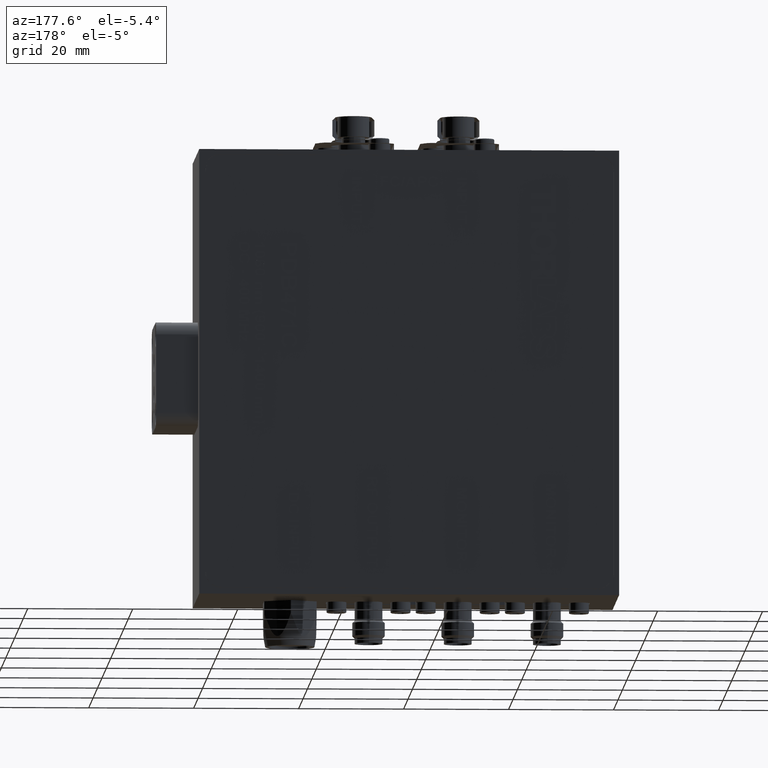
[diagram: clean part render]
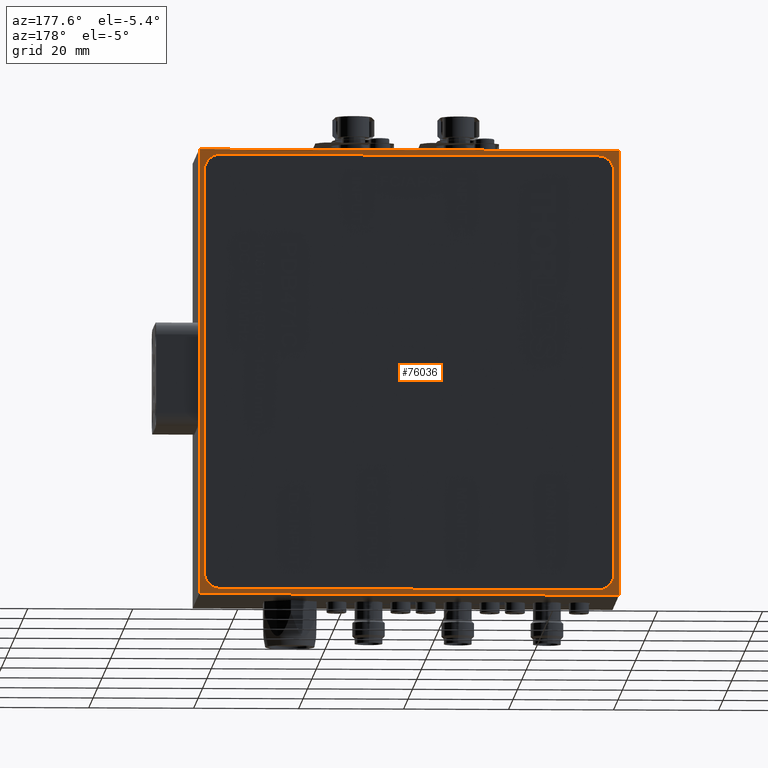
[diagram: same view with one face highlighted and labeled with its STEP entity id]
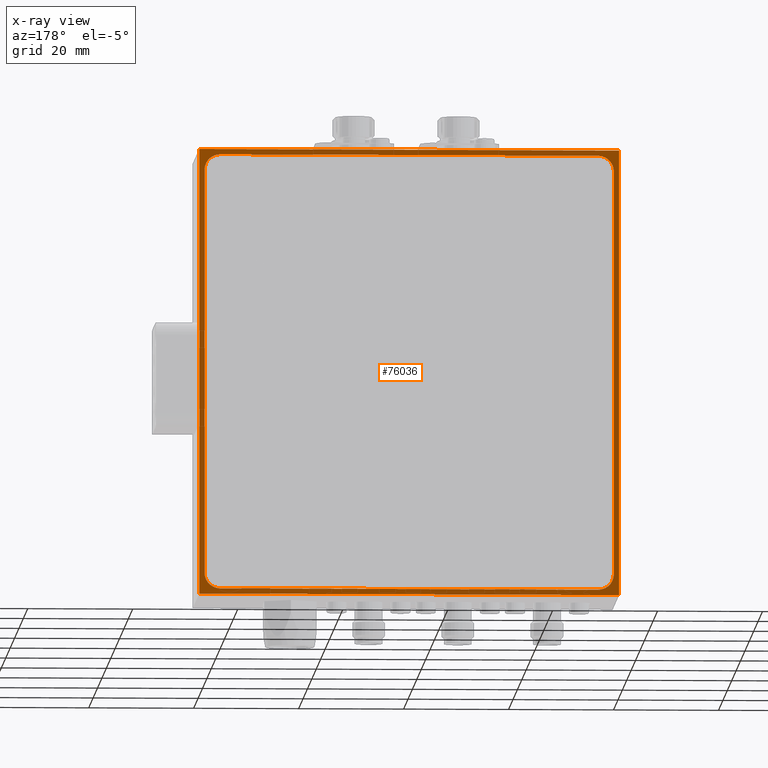
[diagram: x-ray of the same camera — body ghosted, the highlighted face saturated]
A machine part, auxiliary view. The second image highlights one B-rep face of the part: STEP entity #76036.
The next image is the same camera in x-ray: the body ghosted, the highlighted face saturated — about 0% of this face is hidden behind the body in this view.
In plain terms, the highlighted planar face has unit normal (0, 1, 0).
Its self-contained STEP definition (entity closure, byte-faithful):
#11062 = CARTESIAN_POINT ( 'NONE',  ( -40.00000000000000000, 30.00000000000000000, -42.49999999999999300 ) ) ;
#12467 = CARTESIAN_POINT ( 'NONE',  ( 40.00000000000000000, 30.00000000000000000, -42.49999999999999300 ) ) ;
#12607 = CARTESIAN_POINT ( 'NONE',  ( 40.00000000000000000, 30.00000000000000000, 42.49999999999999300 ) ) ;
#14721 = DIRECTION ( 'NONE',  ( -0.0000000000000000000, -0.0000000000000000000, -1.000000000000000000 ) ) ;
#14722 = VECTOR ( 'NONE', #14721, 1000.000000000000000 ) ;
#14723 = CARTESIAN_POINT ( 'NONE',  ( 40.00000000000000000, 30.00000000000000000, -42.49999999999999300 ) ) ;
#14736 = LINE ( 'NONE', #14723, #14722 ) ;
#20460 = DIRECTION ( 'NONE',  ( -1.000000000000000000, -0.0000000000000000000, -0.0000000000000000000 ) ) ;
#20461 = VECTOR ( 'NONE', #20460, 1000.000000000000000 ) ;
#20462 = CARTESIAN_POINT ( 'NONE',  ( -40.00000000000000000, 30.00000000000000000, -42.49999999999999300 ) ) ;
#20463 = LINE ( 'NONE', #20462, #20461 ) ;
#28743 = ORIENTED_EDGE ( 'NONE', *, *, #60069, .T. ) ;
#37681 = DIRECTION ( 'NONE',  ( 8.163404592832034000E-017, 0.0000000000000000000, 1.000000000000000000 ) ) ;
#37682 = VECTOR ( 'NONE', #37681, 1000.000000000000000 ) ;
#37683 = CARTESIAN_POINT ( 'NONE',  ( -40.00000000000000000, 30.00000000000000000, -42.49999999999999300 ) ) ;
#37684 = LINE ( 'NONE', #37683, #37682 ) ;
#37849 = CARTESIAN_POINT ( 'NONE',  ( -39.99999999999999300, 30.00000000000000000, 42.49999999999999300 ) ) ;
#37894 = CARTESIAN_POINT ( 'NONE',  ( -35.99999999999997900, 30.00000000000000000, 41.50000000000000700 ) ) ;
#37899 = CARTESIAN_POINT ( 'NONE',  ( 35.99999999999997900, 30.00000000000000000, -41.50000000000000700 ) ) ;
#37932 = LINE ( 'NONE', #37983, #37982 ) ;
#37959 = CARTESIAN_POINT ( 'NONE',  ( -39.00000000000000000, 30.00000000000000000, -38.49999999999998600 ) ) ;
#37964 = CARTESIAN_POINT ( 'NONE',  ( -35.99999999999997900, 30.00000000000000000, -41.50000000000000700 ) ) ;
#37965 = CARTESIAN_POINT ( 'NONE',  ( 35.99999999999997900, 30.00000000000000000, 41.50000000000000700 ) ) ;
#37980 = DIRECTION ( 'NONE',  ( 1.000000000000000000, 0.0000000000000000000, 0.0000000000000000000 ) ) ;
#37982 = VECTOR ( 'NONE', #37980, 1000.000000000000000 ) ;
#37983 = CARTESIAN_POINT ( 'NONE',  ( -39.99999999999999300, 30.00000000000000000, 42.49999999999999300 ) ) ;
#37984 = CIRCLE ( 'NONE', #38017, 3.000000000000002700 ) ;
#38007 = DIRECTION ( 'NONE',  ( 0.0000000000000000000, 0.0000000000000000000, 1.000000000000000000 ) ) ;
#38008 = DIRECTION ( 'NONE',  ( 0.0000000000000000000, 1.000000000000000000, 0.0000000000000000000 ) ) ;
#38009 = CARTESIAN_POINT ( 'NONE',  ( 36.00000000000000000, 30.00000000000000000, 38.50000000000000700 ) ) ;
#38016 = CARTESIAN_POINT ( 'NONE',  ( 39.00000000000000000, 30.00000000000000000, -38.49999999999998600 ) ) ;
#38017 = AXIS2_PLACEMENT_3D ( 'NONE', #38009, #38008, #38007 ) ;
#38031 = PLANE ( 'NONE',  #38065 ) ;
#38037 = FACE_OUTER_BOUND ( 'NONE', #74638, .T. ) ;
#38039 = CARTESIAN_POINT ( 'NONE',  ( 38.99999999999999300, 30.00000000000000000, 38.49999999999998600 ) ) ;
#38040 = FACE_BOUND ( 'NONE', #75977, .T. ) ;
#38052 = LINE ( 'NONE', #38080, #38079 ) ;
#38053 = CARTESIAN_POINT ( 'NONE',  ( -36.00000000000000000, 30.00000000000000000, 38.50000000000000700 ) ) ;
#38059 = CIRCLE ( 'NONE', #38076, 3.000000000000002700 ) ;
#38061 = DIRECTION ( 'NONE',  ( 0.0000000000000000000, -0.0000000000000000000, 1.000000000000000000 ) ) ;
#38062 = DIRECTION ( 'NONE',  ( 0.0000000000000000000, 1.000000000000000000, 0.0000000000000000000 ) ) ;
#38065 = AXIS2_PLACEMENT_3D ( 'NONE', #38073, #38062, #38061 ) ;
#38073 = CARTESIAN_POINT ( 'NONE',  ( -39.99999999999999300, 30.00000000000000000, 42.49999999999999300 ) ) ;
#38076 = AXIS2_PLACEMENT_3D ( 'NONE', #38053, #38119, #38118 ) ;
#38078 = DIRECTION ( 'NONE',  ( 1.000000000000000000, 0.0000000000000000000, 0.0000000000000000000 ) ) ;
#38079 = VECTOR ( 'NONE', #38078, 1000.000000000000000 ) ;
#38080 = CARTESIAN_POINT ( 'NONE',  ( -35.99999999999997900, 30.00000000000000000, 41.50000000000000700 ) ) ;
#38086 = CARTESIAN_POINT ( 'NONE',  ( -39.00000000000000000, 30.00000000000000000, 38.49999999999998600 ) ) ;
#38087 = AXIS2_PLACEMENT_3D ( 'NONE', #38117, #38109, #38108 ) ;
#38106 = AXIS2_PLACEMENT_3D ( 'NONE', #38148, #38141, #38140 ) ;
#38107 = CIRCLE ( 'NONE', #38106, 3.000000000000002700 ) ;
#38108 = DIRECTION ( 'NONE',  ( 0.0000000000000000000, 0.0000000000000000000, -1.000000000000000000 ) ) ;
#38109 = DIRECTION ( 'NONE',  ( -0.0000000000000000000, 1.000000000000000000, 0.0000000000000000000 ) ) ;
#38112 = DIRECTION ( 'NONE',  ( 0.0000000000000000000, 0.0000000000000000000, 1.000000000000000000 ) ) ;
#38113 = VECTOR ( 'NONE', #38112, 1000.000000000000000 ) ;
#38114 = CARTESIAN_POINT ( 'NONE',  ( -39.00000000000000000, 30.00000000000000000, -38.49999999999998600 ) ) ;
#38115 = LINE ( 'NONE', #38114, #38113 ) ;
#38116 = CIRCLE ( 'NONE', #38087, 3.000000000000002700 ) ;
#38117 = CARTESIAN_POINT ( 'NONE',  ( 36.00000000000000000, 30.00000000000000000, -38.50000000000000700 ) ) ;
#38118 = DIRECTION ( 'NONE',  ( 0.0000000000000000000, 0.0000000000000000000, 1.000000000000000000 ) ) ;
#38119 = DIRECTION ( 'NONE',  ( 0.0000000000000000000, 1.000000000000000000, 0.0000000000000000000 ) ) ;
#38140 = DIRECTION ( 'NONE',  ( 0.0000000000000000000, 0.0000000000000000000, 1.000000000000000000 ) ) ;
#38141 = DIRECTION ( 'NONE',  ( 0.0000000000000000000, 1.000000000000000000, 0.0000000000000000000 ) ) ;
#38148 = CARTESIAN_POINT ( 'NONE',  ( -36.00000000000000000, 30.00000000000000000, -38.50000000000000700 ) ) ;
#38216 = DIRECTION ( 'NONE',  ( -0.0000000000000000000, -0.0000000000000000000, -1.000000000000000000 ) ) ;
#38217 = VECTOR ( 'NONE', #38216, 1000.000000000000000 ) ;
#38218 = CARTESIAN_POINT ( 'NONE',  ( 39.00000000000000000, 30.00000000000000000, -38.49999999999998600 ) ) ;
#38219 = LINE ( 'NONE', #38218, #38217 ) ;
#38222 = DIRECTION ( 'NONE',  ( -1.000000000000000000, -0.0000000000000000000, -0.0000000000000000000 ) ) ;
#38223 = VECTOR ( 'NONE', #38222, 1000.000000000000000 ) ;
#38229 = CARTESIAN_POINT ( 'NONE',  ( -35.99999999999997900, 30.00000000000000000, -41.50000000000000700 ) ) ;
#38230 = LINE ( 'NONE', #38229, #38223 ) ;
#56979 = VERTEX_POINT ( 'NONE', #11062 ) ;
#57512 = VERTEX_POINT ( 'NONE', #12467 ) ;
#57582 = VERTEX_POINT ( 'NONE', #12607 ) ;
#58190 = EDGE_CURVE ( 'NONE', #57582, #57512, #14736, .T. ) ;
#60069 = EDGE_CURVE ( 'NONE', #57512, #56979, #20463, .T. ) ;
#74638 = EDGE_LOOP ( 'NONE', ( #76135, #76101, #76025, #28743 ) ) ;
#75440 = ORIENTED_EDGE ( 'NONE', *, *, #76142, .F. ) ;
#75792 = EDGE_CURVE ( 'NONE', #56979, #75883, #37684, .T. ) ;
#75883 = VERTEX_POINT ( 'NONE', #37849 ) ;
#75891 = ORIENTED_EDGE ( 'NONE', *, *, #75990, .F. ) ;
#75893 = ORIENTED_EDGE ( 'NONE', *, *, #76074, .F. ) ;
#75901 = VERTEX_POINT ( 'NONE', #37899 ) ;
#75902 = VERTEX_POINT ( 'NONE', #37894 ) ;
#75962 = EDGE_CURVE ( 'NONE', #75883, #57582, #37932, .T. ) ;
#75969 = VERTEX_POINT ( 'NONE', #37965 ) ;
#75977 = EDGE_LOOP ( 'NONE', ( #75891, #76042, #76062, #75999, #75893, #76138, #75988, #75440 ) ) ;
#75985 = VERTEX_POINT ( 'NONE', #37959 ) ;
#75988 = ORIENTED_EDGE ( 'NONE', *, *, #76069, .F. ) ;
#75990 = EDGE_CURVE ( 'NONE', #75969, #76040, #37984, .T. ) ;
#75996 = VERTEX_POINT ( 'NONE', #37964 ) ;
#75999 = ORIENTED_EDGE ( 'NONE', *, *, #76064, .F. ) ;
#76001 = VERTEX_POINT ( 'NONE', #38016 ) ;
#76025 = ORIENTED_EDGE ( 'NONE', *, *, #58190, .T. ) ;
#76036 = ADVANCED_FACE ( 'NONE', ( #38040, #38037 ), #38031, .T. ) ;
#76040 = VERTEX_POINT ( 'NONE', #38039 ) ;
#76042 = ORIENTED_EDGE ( 'NONE', *, *, #76047, .F. ) ;
#76047 = EDGE_CURVE ( 'NONE', #75902, #75969, #38052, .T. ) ;
#76048 = VERTEX_POINT ( 'NONE', #38086 ) ;
#76053 = EDGE_CURVE ( 'NONE', #76048, #75902, #38059, .T. ) ;
#76062 = ORIENTED_EDGE ( 'NONE', *, *, #76053, .F. ) ;
#76064 = EDGE_CURVE ( 'NONE', #75985, #76048, #38115, .T. ) ;
#76069 = EDGE_CURVE ( 'NONE', #76001, #75901, #38116, .T. ) ;
#76074 = EDGE_CURVE ( 'NONE', #75996, #75985, #38107, .T. ) ;
#76101 = ORIENTED_EDGE ( 'NONE', *, *, #75962, .T. ) ;
#76132 = EDGE_CURVE ( 'NONE', #75901, #75996, #38230, .T. ) ;
#76135 = ORIENTED_EDGE ( 'NONE', *, *, #75792, .T. ) ;
#76138 = ORIENTED_EDGE ( 'NONE', *, *, #76132, .F. ) ;
#76142 = EDGE_CURVE ( 'NONE', #76040, #76001, #38219, .T. ) ;